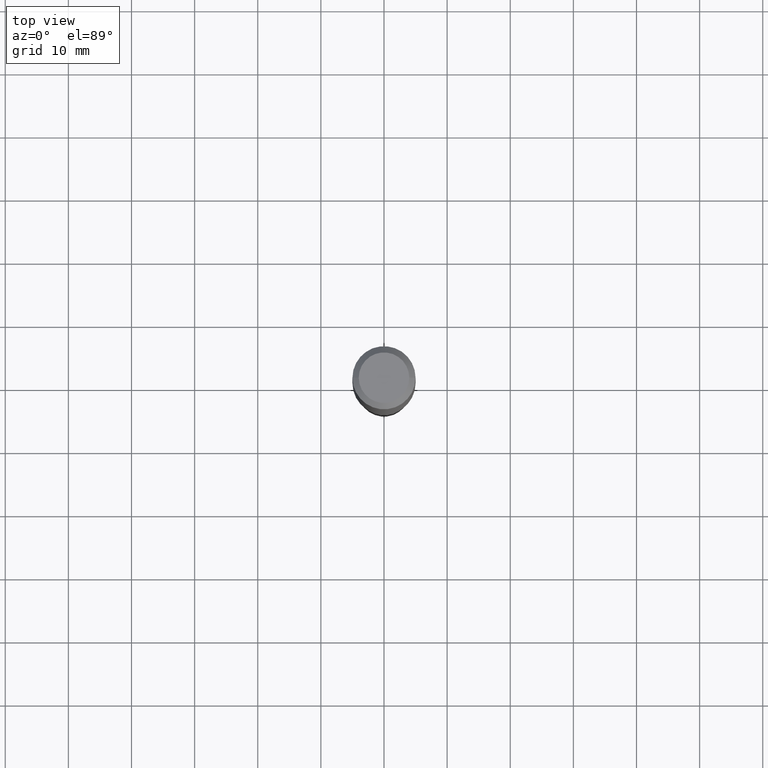
[diagram: clean part render]
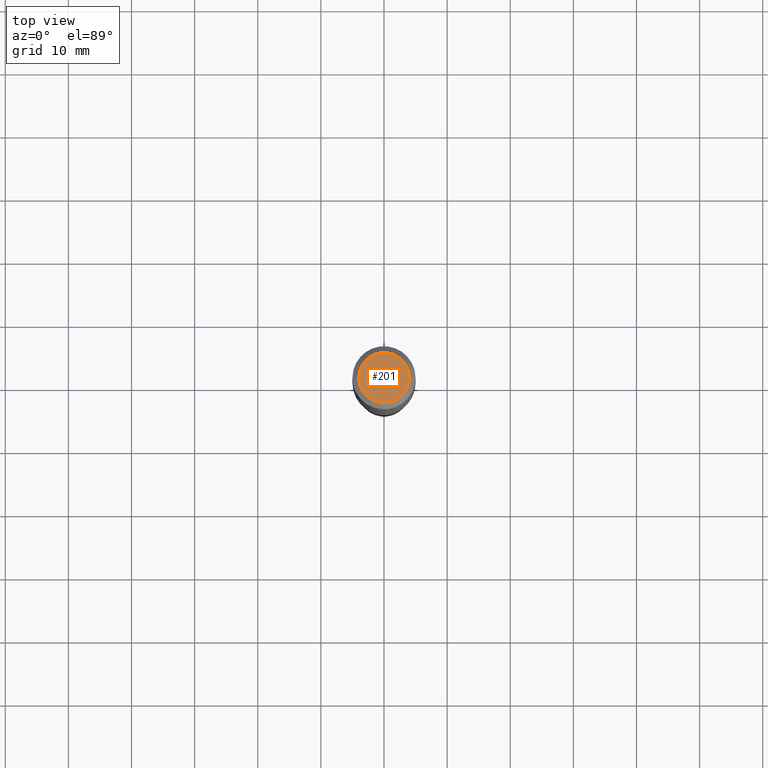
[diagram: same view with one face highlighted and labeled with its STEP entity id]
A machine part, top view. The second image highlights one B-rep face of the part: STEP entity #201.
In plain terms, the highlighted planar face has unit normal (0, -0, -1).
Its self-contained STEP definition (entity closure, byte-faithful):
#6 = VERTEX_POINT ( 'NONE', #221 ) ;
#14 = ORIENTED_EDGE ( 'NONE', *, *, #243, .T. ) ;
#25 = PLANE ( 'NONE',  #124 ) ;
#124 = AXIS2_PLACEMENT_3D ( 'NONE', #192, #150, #315 ) ;
#130 = AXIS2_PLACEMENT_3D ( 'NONE', #231, #335, #271 ) ;
#150 = DIRECTION ( 'NONE',  ( 2.438088387897960049E-29, -3.491481338843145188E-15, -1.000000000000000000 ) ) ;
#162 = CIRCLE ( 'NONE', #130, 0.1574800000000000089 ) ;
#192 = CARTESIAN_POINT ( 'NONE',  ( -4.713871149261283817E-47, 6.730158695841841775E-33, 1.927594061857935365E-18 ) ) ;
#201 = ADVANCED_FACE ( 'NONE', ( #385 ), #25, .F. ) ;
#221 = CARTESIAN_POINT ( 'NONE',  ( -0.1574800000000000089, 1.168406772637159618E-15, 3.855188123707939751E-18 ) ) ;
#231 = CARTESIAN_POINT ( 'NONE',  ( -9.427742298522567634E-47, 1.346031739168368355E-32, 3.855188123715870730E-18 ) ) ;
#234 = CARTESIAN_POINT ( 'NONE',  ( -9.427742298522567634E-47, 1.346031739168368355E-32, 3.855188123715870730E-18 ) ) ;
#237 = DIRECTION ( 'NONE',  ( -2.445468806185136597E-29, 3.491481338843145583E-15, 1.000000000000000000 ) ) ;
#243 = EDGE_CURVE ( 'NONE', #6, #501, #162, .T. ) ;
#254 = ORIENTED_EDGE ( 'NONE', *, *, #434, .T. ) ;
#271 = DIRECTION ( 'NONE',  ( 1.000000000000000000, -6.982962677686265922E-15, 4.876223630392693006E-29 ) ) ;
#315 = DIRECTION ( 'NONE',  ( -1.000000000000000000, 6.982962677686265922E-15, -4.876176775795935793E-29 ) ) ;
#326 = EDGE_LOOP ( 'NONE', ( #14, #254 ) ) ;
#335 = DIRECTION ( 'NONE',  ( -2.445468806185136597E-29, 3.491481338843145583E-15, 1.000000000000000000 ) ) ;
#353 = CARTESIAN_POINT ( 'NONE',  ( 0.1574800000000000089, -1.284169937930321189E-15, 3.855188123724205385E-18 ) ) ;
#376 = AXIS2_PLACEMENT_3D ( 'NONE', #234, #237, #465 ) ;
#385 = FACE_OUTER_BOUND ( 'NONE', #326, .T. ) ;
#428 = CIRCLE ( 'NONE', #376, 0.1574800000000000089 ) ;
#434 = EDGE_CURVE ( 'NONE', #501, #6, #428, .T. ) ;
#465 = DIRECTION ( 'NONE',  ( 1.000000000000000000, -6.982962677686265922E-15, 4.876223630392693006E-29 ) ) ;
#501 = VERTEX_POINT ( 'NONE', #353 ) ;